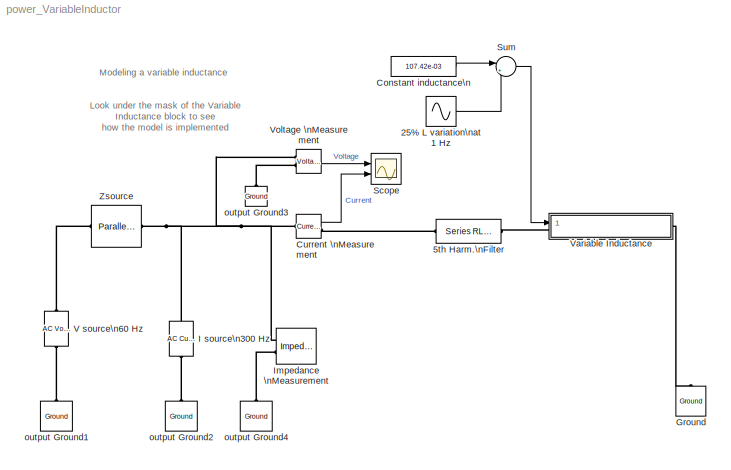
MODEL power_VariableInductor
KIND model
BLOCK [Sin] 25% L variation\nat 1 Hz
  Amplitude = 107.42e-03 *25/100
  Frequency = 2*pi*1
  Ports = [0, 1]
  SampleTime = 0
  SineType = Time based
BLOCK [Reference] 5th Harm.\nFilter  REF=powerlib/Elements/Series RLC Branch
  Capacitance = 2.62e-6
  Inductance = 0
  LConnTagsString = __new0
  LeftPortType = p1
  Measurements = None
  PhysicalDomain = powersysdomain
  Ports = [0, 0, 0, 0, 0, 1, 1]
  RConnTagsString = __new0
  Resistance = 1.27
  RightPortType = p1
  SourceBlock = powerlib/Elements/Series RLC Branch
  SourceType = Series RLC Branch
  SubClassName = unknown
BLOCK [Constant] Constant inductance\n
  Value = 107.42e-03
BLOCK [Reference] Current \nMeasurement  REF=powerlib/Measurements/Current Measurement
  OutputType = Magnitude
  PSBequivalent = 0
  PhasorSimulation = off
  Ports = [0, 1, 0, 0, 0, 1, 1]
  ShowPortLabels = on
  SourceBlock = powerlib/Measurements/Current Measurement
  SourceType = Current Measurement
BLOCK [Reference] Ground  REF=powerlib/Elements/Ground
  LConnTagsString = a
  LeftPortType = p1
  PhysicalDomain = powersysdomain
  Ports = [0, 0, 0, 0, 0, 1]
  RightPortType = p1
  SourceBlock = powerlib/Elements/Ground
  SourceType = Ground
  SubClassName = unknown
BLOCK [Reference] I source\n300 Hz  REF=powerlib/Electrical\nSources/AC Current Source
  Amplitude = 10
  Frequency = 300
  Measurements = None
  Phase = -30
  Ports = [0, 0, 0, 0, 0, 1, 1]
  SampleTime = 0
  ShowPortLabels = on
  SourceBlock = powerlib/Electrical\nSources/AC Current Source
  SourceType = AC Current Source
BLOCK [Reference] Impedance \nMeasurement  REF=powerlib/Measurements/Impedance Measurement
  Factor = 1
  LConnTagsString = +|-
  LeftPortType = p1
  PhysicalDomain = powersysdomain
  Ports = [0, 0, 0, 0, 0, 2]
  RightPortType = p1
  SourceBlock = powerlib/Measurements/Impedance Measurement
  SourceType = Impedance Measurement
  SubClassName = unknown
BLOCK [Scope] Scope
  DataFormat = Array
  LimitDataPoints = off
  NumInputPorts = 2
  Ports = [2]
  TimeRange = 2
  YMax = 500~20
  YMin = -500~-20
  ZoomMode = xonly
BLOCK [Sum] Sum
  IconShape = round
  InputSameDT = off
  Inputs = |++
  OutDataTypeMode = Inherit via internal rule
  Ports = [2, 1]
BLOCK [Reference] V source\n60 Hz  REF=powerlib/Electrical\nSources/AC Voltage Source
  Amplitude = 100
  Frequency = 60
  Measurements = None
  Phase = 0
  Ports = [0, 0, 0, 0, 0, 1, 1]
  SampleTime = 0
  ShowPortLabels = on
  SourceBlock = powerlib/Electrical\nSources/AC Voltage Source
  SourceType = AC Voltage Source
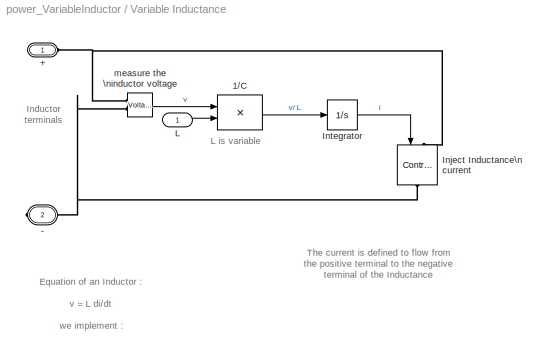
BLOCK [SubSystem] Variable Inductance
  MaskDisplay = disp('Variable Inductor')
  MaskEnableString = on
  MaskIconFrame = on
  MaskIconOpaque = off
  MaskIconRotate = none
  MaskIconUnits = autoscale
  MaskPromptString = Initial Voltage
  MaskStyleString = edit
  MaskToolTipString = on
  MaskTunableValueString = on
  MaskValueString = -4.169
  MaskVariables = Iinit=@1;
  MaskVisibilityString = on
  MinAlgLoopOccurrences = off
  Ports = [1, 0, 0, 0, 0, 1, 1]
  RTWSystemCode = Auto
  TreatAsAtomicUnit = off
BLOCK [PMIOPort] Variable Inductance/+
  Port = 1
  Side = Left
BLOCK [PMIOPort] Variable Inductance/-
  Port = 2
  Side = Right
BLOCK [Product] Variable Inductance/1//C
  InputSameDT = off
  Inputs = */
  Ports = [2, 1]
  RndMeth = Floor
BLOCK [Reference] Variable Inductance/Inject Inductance\ncurrent   REF=powerlib/Electrical\nSources/Controlled Current Source
  Amplitude = 0
  Frequency = 0
  Initialize = on
  Measurements = None
  Phase = 0
  Ports = [1, 0, 0, 0, 0, 1, 1]
  ShowPortLabels = on
  SourceBlock = powerlib/Electrical\nSources/Controlled Current Source
  SourceType = AC
BLOCK [Integrator] Variable Inductance/Integrator
  InitialCondition = Iinit
  Ports = [1, 1]
BLOCK [Inport] Variable Inductance/L
  IconDisplay = Port number
  LatchInput = off
  Port = 1
BLOCK [Reference] Variable Inductance/measure the \ninductor voltage  REF=powerlib/Measurements/Voltage Measurement
  OutputType = Magnitude
  PSBequivalent = 0
  PhasorSimulation = off
  Ports = [0, 1, 0, 0, 0, 2]
  ShowPortLabels = on
  SourceBlock = powerlib/Measurements/Voltage Measurement
  SourceType = Voltage Measurement
BLOCK [Reference] Voltage \nMeasurement  REF=powerlib/Measurements/Voltage Measurement
  OutputType = Magnitude
  PSBequivalent = 0
  PhasorSimulation = off
  Ports = [0, 1, 0, 0, 0, 2]
  ShowPortLabels = on
  SourceBlock = powerlib/Measurements/Voltage Measurement
  SourceType = Voltage Measurement
BLOCK [Reference] Zsource  REF=powerlib/Elements/Parallel RLC Branch
  AttributesFormatString = \\n
  Capacitance = 0
  Inductance = 10e-03
  LConnTagsString = a
  LeftPortType = p1
  Measurements = None
  PhysicalDomain = powersysdomain
  Ports = [0, 0, 0, 0, 0, 1, 1]
  RConnTagsString = __new0
  Resistance = 37.7
  RightPortType = p1
  SourceBlock = powerlib/Elements/Parallel RLC Branch
  SourceType = Parallel RLC Branch
  SubClassName = unknown
BLOCK [Reference] output Ground1  REF=powerlib/Elements/Ground
  LConnTagsString = a
  LeftPortType = p1
  PhysicalDomain = powersysdomain
  Ports = [0, 0, 0, 0, 0, 1]
  RightPortType = p1
  SourceBlock = powerlib/Elements/Ground
  SourceType = Ground
  SubClassName = unknown
BLOCK [Reference] output Ground2  REF=powerlib/Elements/Ground
  LConnTagsString = a
  LeftPortType = p1
  PhysicalDomain = powersysdomain
  Ports = [0, 0, 0, 0, 0, 1]
  RightPortType = p1
  SourceBlock = powerlib/Elements/Ground
  SourceType = Ground
  SubClassName = unknown
BLOCK [Reference] output Ground3  REF=powerlib/Elements/Ground
  LConnTagsString = a
  LeftPortType = p1
  PhysicalDomain = powersysdomain
  Ports = [0, 0, 0, 0, 0, 1]
  RightPortType = p1
  SourceBlock = powerlib/Elements/Ground
  SourceType = Ground
  SubClassName = unknown
BLOCK [Reference] output Ground4  REF=powerlib/Elements/Ground
  LConnTagsString = a
  LeftPortType = p1
  PhysicalDomain = powersysdomain
  Ports = [0, 0, 0, 0, 0, 1]
  RightPortType = p1
  SourceBlock = powerlib/Elements/Ground
  SourceType = Ground
  SubClassName = unknown
ANNOTATION (root): Modeling a variable inductance
ANNOTATION (root): Look under the mask of the Variable\nInductance block to see\n how the model is implemented
ANNOTATION Variable Inductance: Equation of an Inductor :\n\nv = L di/dt\n\nwe implement :\n\ni = 1/L * v/s
ANNOTATION Variable Inductance: Inductor\nterminals
ANNOTATION Variable Inductance: L is variable
ANNOTATION Variable Inductance: The current is defined to flow from\n the positive terminal to the negative\nterminal of the Inductance
LINE 25% L variation\nat 1 Hz:1 -> Sum:2
LINE Constant inductance\n:1 -> Sum:1
LINE Current \nMeasurement:1 -> Scope:2
LINE Sum:1 -> Variable Inductance:1
LINE Variable Inductance/1//C:1 -> Variable Inductance/Integrator:1
LINE Variable Inductance/Integrator:1 -> Variable Inductance/Inject Inductance\ncurrent :1
LINE Variable Inductance/L:1 -> Variable Inductance/1//C:2
LINE Variable Inductance/measure the \ninductor voltage:1 -> Variable Inductance/1//C:1
LINE Voltage \nMeasurement:1 -> Scope:1
PLINE 5th Harm.\nFilter:LConn1 -- Current \nMeasurement:RConn1
PLINE 5th Harm.\nFilter:RConn1 -- Variable Inductance:LConn1
PNET net1: Current \nMeasurement:LConn1 -- I source\n300 Hz:RConn1 -- Impedance \nMeasurement:LConn1 -- Voltage \nMeasurement:LConn1 -- Zsource:RConn1
PLINE Ground:LConn1 -- Variable Inductance:RConn1
PLINE I source\n300 Hz:LConn1 -- output Ground2:LConn1
PLINE Impedance \nMeasurement:LConn2 -- output Ground4:LConn1
PLINE V source\n60 Hz:LConn1 -- output Ground1:LConn1
PLINE V source\n60 Hz:RConn1 -- Zsource:LConn1
PNET net2: Variable Inductance/+:RConn1 -- Variable Inductance/Inject Inductance\ncurrent :LConn1 -- Variable Inductance/measure the \ninductor voltage:LConn1
PNET net3: Variable Inductance/-:RConn1 -- Variable Inductance/Inject Inductance\ncurrent :RConn1 -- Variable Inductance/measure the \ninductor voltage:LConn2
PLINE Voltage \nMeasurement:LConn2 -- output Ground3:LConn1
note: PNET lines group multi-terminal physical nets as a canonical sorted terminal list (undirected conserving connections); 2-terminal nets keep the pairwise PLINE form
